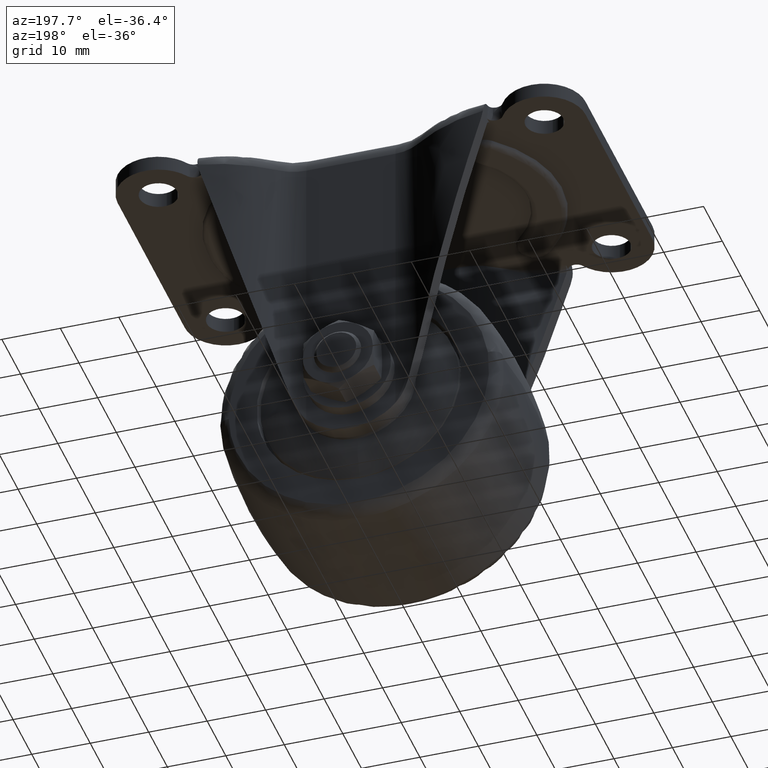
[diagram: clean part render]
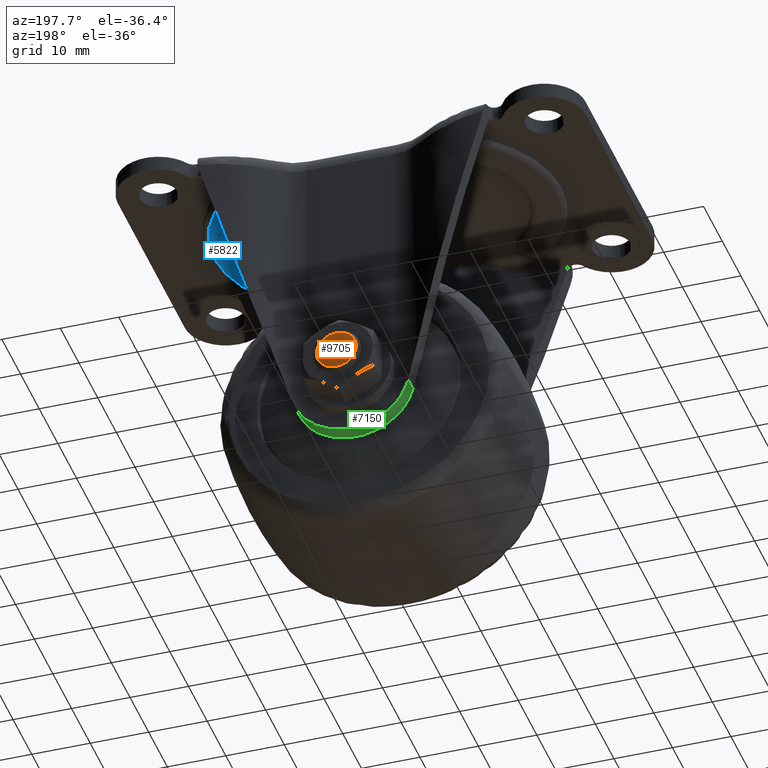
[diagram: same view with three faces highlighted in distinct colors, each labeled with its STEP entity id]
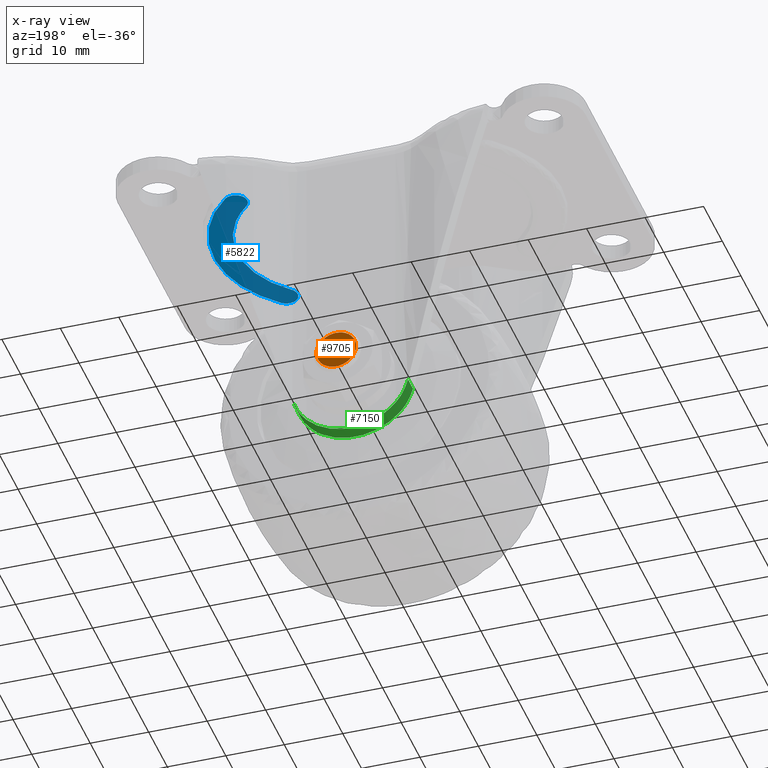
[diagram: x-ray of the same camera — body ghosted, the three highlighted faces saturated]
A machine part, auxiliary view with three faces highlighted in distinct colors.
The next image is the same camera in x-ray (body ghosted, the three faces saturated) — at least one of them is partly hidden behind the body in this view.
Their STEP definitions:

[orange] entity #9705 — the highlighted face is a freeform B-spline surface patch.
#8652=CARTESIAN_POINT('',(3.376232389639959,26.149999999938839,-47.401316398320091));
#8653=VERTEX_POINT('',#8652);
#8659=CARTESIAN_POINT('',(0.0,26.149999999999999,-43.600000000000193));
#8660=VERTEX_POINT('',#8659);
#8661=CARTESIAN_POINT('',(3.376232389639960,26.149999999938835,-47.401316398320091));
#8662=CARTESIAN_POINT('',(3.399999999999804,26.149999999999999,-47.201362007301469));
#8663=CARTESIAN_POINT('',(3.399999999999805,26.149999999999999,-47.0));
#8664=CARTESIAN_POINT('',(3.399999999999805,26.150000000000002,-43.600000000000200));
#8665=CARTESIAN_POINT('',(0.0,26.149999999999999,-43.600000000000193));
#8673=(BOUNDED_CURVE()B_SPLINE_CURVE(2,(#8661,#8662,#8663,#8664,#8665),.UNSPECIFIED.,.F.,.U.)B_SPLINE_CURVE_WITH_KNOTS((3,2,3),(0.229562473467599,0.250000000000000,0.500000000000000),.UNSPECIFIED.)CURVE()GEOMETRIC_REPRESENTATION_ITEM()RATIONAL_B_SPLINE_CURVE((0.956026754093714,0.976055948277358,1.0,0.707106781186547,1.0))REPRESENTATION_ITEM(''));
#8674=EDGE_CURVE('',#8653,#8660,#8673,.T.);
#8676=CARTESIAN_POINT('',(-3.393658314672810,26.149999999927690,-46.792434965029052));
#8677=VERTEX_POINT('',#8676);
#8678=CARTESIAN_POINT('',(0.0,26.149999999999999,-43.600000000000193));
#8679=CARTESIAN_POINT('',(-3.198400626444214,26.149999999999999,-43.600000000000193));
#8680=CARTESIAN_POINT('',(-3.393658314672811,26.149999999927690,-46.792434965029045));
#8688=(BOUNDED_CURVE()B_SPLINE_CURVE(2,(#8678,#8679,#8680),.UNSPECIFIED.,.F.,.U.)B_SPLINE_CURVE_WITH_KNOTS((3,3),(0.500000000000000,0.739332962186238),.UNSPECIFIED.)CURVE()GEOMETRIC_REPRESENTATION_ITEM()RATIONAL_B_SPLINE_CURVE((1.0,0.719603993348457,0.976072041553762))REPRESENTATION_ITEM(''));
#8689=EDGE_CURVE('',#8660,#8677,#8688,.T.);
#8722=CARTESIAN_POINT('',(0.0,26.149999999999999,-50.399999999999807));
#8723=VERTEX_POINT('',#8722);
#8724=CARTESIAN_POINT('',(-3.393658314672811,26.149999999927687,-46.792434965029045));
#8725=CARTESIAN_POINT('',(-3.399999999999805,26.149999999999995,-46.896120604235222));
#8726=CARTESIAN_POINT('',(-3.399999999999805,26.149999999999999,-47.0));
#8727=CARTESIAN_POINT('',(-3.399999999999805,26.150000000000002,-50.399999999999793));
#8728=CARTESIAN_POINT('',(0.0,26.149999999999999,-50.399999999999807));
#8736=(BOUNDED_CURVE()B_SPLINE_CURVE(2,(#8724,#8725,#8726,#8727,#8728),.UNSPECIFIED.,.F.,.U.)B_SPLINE_CURVE_WITH_KNOTS((3,2,3),(0.739332962186239,0.750000000000000,1.0),.UNSPECIFIED.)CURVE()GEOMETRIC_REPRESENTATION_ITEM()RATIONAL_B_SPLINE_CURVE((0.976072041553763,0.987502787838091,1.0,0.707106781186547,1.0))REPRESENTATION_ITEM(''));
#8737=EDGE_CURVE('',#8677,#8723,#8736,.T.);
#8739=CARTESIAN_POINT('',(0.0,26.149999999999999,-50.399999999999807));
#8740=CARTESIAN_POINT('',(3.019793387369937,26.150000000000002,-50.399999999999800));
#8741=CARTESIAN_POINT('',(3.376232389639960,26.149999999938842,-47.401316398320098));
#8749=(BOUNDED_CURVE()B_SPLINE_CURVE(2,(#8739,#8740,#8741),.UNSPECIFIED.,.F.,.U.)B_SPLINE_CURVE_WITH_KNOTS((3,3),(0.0,0.229562473467598),.UNSPECIFIED.)CURVE()GEOMETRIC_REPRESENTATION_ITEM()RATIONAL_B_SPLINE_CURVE((1.0,0.731050832909189,0.956026754093714))REPRESENTATION_ITEM(''));
#8750=EDGE_CURVE('',#8723,#8653,#8749,.T.);
#9694=CARTESIAN_POINT('',(-3.739577233841927,26.149999999999999,-43.260338344458432));
#9695=CARTESIAN_POINT('',(-3.739577233841927,26.149999999999999,-50.739661777135041));
#9696=CARTESIAN_POINT('',(3.739598147919685,26.149999999999999,-43.260338344458432));
#9697=CARTESIAN_POINT('',(3.739598147919685,26.149999999999999,-50.739661777135041));
#9698=B_SPLINE_SURFACE_WITH_KNOTS('',1,1,((#9694,#9696),(#9695,#9697)),.UNSPECIFIED.,.F.,.F.,.U.,(2,2),(2,2),(0.0,7.479323432676609),(0.0,7.479175381761611),.UNSPECIFIED.);
#9699=ORIENTED_EDGE('',*,*,#8737,.F.);
#9700=ORIENTED_EDGE('',*,*,#8689,.F.);
#9701=ORIENTED_EDGE('',*,*,#8674,.F.);
#9702=ORIENTED_EDGE('',*,*,#8750,.F.);
#9703=EDGE_LOOP('',(#9699,#9700,#9701,#9702));
#9704=FACE_OUTER_BOUND('',#9703,.T.);
#9705=ADVANCED_FACE('',(#9704),#9698,.F.);

[blue] entity #5822 — the highlighted face is a freeform B-spline surface patch.
#5534=CARTESIAN_POINT('',(19.909793814433002,12.015463917525780,-3.600000000000000));
#5535=VERTEX_POINT('',#5534);
#5549=CARTESIAN_POINT('',(19.909793814433002,-12.015463917525780,-3.600000000000000));
#5550=VERTEX_POINT('',#5549);
#5551=CARTESIAN_POINT('',(19.909793814432991,-12.015463917525770,-3.600000000000000));
#5552=CARTESIAN_POINT('',(25.249999999999996,-7.194444444444446,-3.600000000000000));
#5553=CARTESIAN_POINT('',(25.250000000000000,0.0,-3.600000000000000));
#5554=CARTESIAN_POINT('',(25.249999999999996,7.194444444444441,-3.600000000000000));
#5555=CARTESIAN_POINT('',(19.909793814432991,12.015463917525770,-3.600000000000000));
#5563=(BOUNDED_CURVE()B_SPLINE_CURVE(2,(#5551,#5552,#5553,#5554,#5555),.UNSPECIFIED.,.F.,.U.)B_SPLINE_CURVE_WITH_KNOTS((3,2,3),(0.0,0.500000000000000,1.0),.UNSPECIFIED.)CURVE()GEOMETRIC_REPRESENTATION_ITEM()RATIONAL_B_SPLINE_CURVE((1.0,0.913811548620257,1.0,0.913811548620257,1.0))REPRESENTATION_ITEM(''));
#5564=EDGE_CURVE('',#5550,#5535,#5563,.T.);
#5622=CARTESIAN_POINT('',(22.590206184249649,-14.984536083663500,-3.600000000000000));
#5623=VERTEX_POINT('',#5622);
#5655=CARTESIAN_POINT('',(22.590206184249659,-14.984536083663510,-3.600000000000000));
#5656=CARTESIAN_POINT('',(21.105670101244826,-16.324742267318527,-3.600000000000001));
#5657=CARTESIAN_POINT('',(19.765463916931139,-14.840206184908331,-3.600000000000000));
#5658=CARTESIAN_POINT('',(18.425257732617446,-13.355670102498143,-3.600000000000001));
#5659=CARTESIAN_POINT('',(19.909793814432991,-12.015463917525770,-3.600000000000000));
#5667=(BOUNDED_CURVE()B_SPLINE_CURVE(2,(#5655,#5656,#5657,#5658,#5659),.UNSPECIFIED.,.F.,.U.)B_SPLINE_CURVE_WITH_KNOTS((3,2,3),(0.0,0.500000000000000,1.0),.UNSPECIFIED.)CURVE()GEOMETRIC_REPRESENTATION_ITEM()RATIONAL_B_SPLINE_CURVE((1.0,0.707106781343417,1.0,0.707106781343417,1.0))REPRESENTATION_ITEM(''));
#5668=EDGE_CURVE('',#5623,#5550,#5667,.T.);
#5698=CARTESIAN_POINT('',(22.590206172269951,14.984536094478520,-3.600000000000000));
#5699=VERTEX_POINT('',#5698);
#5713=CARTESIAN_POINT('',(19.909793814432991,12.015463917525770,-3.600000000000000));
#5714=CARTESIAN_POINT('',(18.425257738607300,13.355670097090634,-3.600000000000000));
#5715=CARTESIAN_POINT('',(19.765463911523629,14.840206178918480,-3.600000000000000));
#5716=CARTESIAN_POINT('',(21.105670084439957,16.324742260746323,-3.600000000000000));
#5717=CARTESIAN_POINT('',(22.590206172269951,14.984536094478520,-3.600000000000000));
#5725=(BOUNDED_CURVE()B_SPLINE_CURVE(2,(#5713,#5714,#5715,#5716,#5717),.UNSPECIFIED.,.F.,.U.)B_SPLINE_CURVE_WITH_KNOTS((3,2,3),(0.0,0.500000000000000,1.0),.UNSPECIFIED.)CURVE()GEOMETRIC_REPRESENTATION_ITEM()RATIONAL_B_SPLINE_CURVE((1.0,0.707106782769945,1.0,0.707106782769945,1.0))REPRESENTATION_ITEM(''));
#5726=EDGE_CURVE('',#5535,#5699,#5725,.T.);
#5765=CARTESIAN_POINT('',(22.590206172269951,14.984536094478520,-3.600000000000000));
#5766=CARTESIAN_POINT('',(29.249999996413482,8.972222236186392,-3.599999999999999));
#5767=CARTESIAN_POINT('',(29.250000000000000,8.069660E-009,-3.600000000000000));
#5768=CARTESIAN_POINT('',(29.250000003586521,-8.972222220047065,-3.599999999999999));
#5769=CARTESIAN_POINT('',(22.590206184249659,-14.984536083663510,-3.600000000000000));
#5777=(BOUNDED_CURVE()B_SPLINE_CURVE(2,(#5765,#5766,#5767,#5768,#5769),.UNSPECIFIED.,.F.,.U.)B_SPLINE_CURVE_WITH_KNOTS((3,2,3),(0.0,0.500000000000000,1.0),.UNSPECIFIED.)CURVE()GEOMETRIC_REPRESENTATION_ITEM()RATIONAL_B_SPLINE_CURVE((1.0,0.913811548521230,1.0,0.913811548521230,1.0))REPRESENTATION_ITEM(''));
#5778=EDGE_CURVE('',#5699,#5623,#5777,.T.);
#5811=CARTESIAN_POINT('',(18.750502007301609,17.048447987612821,-3.600000000000000));
#5812=CARTESIAN_POINT('',(29.749500154201201,17.048447987612821,-3.600000000000000));
#5813=CARTESIAN_POINT('',(18.750502007301609,-17.048447483793950,-3.600000000000000));
#5814=CARTESIAN_POINT('',(29.749500154201201,-17.048447483793950,-3.600000000000000));
#5815=B_SPLINE_SURFACE_WITH_KNOTS('',1,1,((#5811,#5813),(#5812,#5814)),.UNSPECIFIED.,.F.,.F.,.U.,(2,2),(2,2),(0.0,10.998998146899600),(0.0,34.096895471406768),.UNSPECIFIED.);
#5816=ORIENTED_EDGE('',*,*,#5668,.T.);
#5817=ORIENTED_EDGE('',*,*,#5564,.T.);
#5818=ORIENTED_EDGE('',*,*,#5726,.T.);
#5819=ORIENTED_EDGE('',*,*,#5778,.T.);
#5820=EDGE_LOOP('',(#5816,#5817,#5818,#5819));
#5821=FACE_OUTER_BOUND('',#5820,.T.);
#5822=ADVANCED_FACE('',(#5821),#5815,.T.);

[green] entity #7150 — the highlighted face is a freeform B-spline surface patch.
#6916=CARTESIAN_POINT('',(-9.891750061092068,18.733002500929999,-50.045615801581199));
#6917=VERTEX_POINT('',#6916);
#6931=CARTESIAN_POINT('',(-9.891750061092068,16.024423790196899,-50.045615801581199));
#6932=VERTEX_POINT('',#6931);
#6933=CARTESIAN_POINT('',(-9.891750061092068,18.733002500929999,-50.045615801581199));
#6934=CARTESIAN_POINT('',(-9.891750061092068,16.024423790196899,-50.045615801581199));
#6935=QUASI_UNIFORM_CURVE('',1,(#6933,#6934),.UNSPECIFIED.,.F.,.U.);
#6936=EDGE_CURVE('',#6917,#6932,#6935,.T.);
#6990=CARTESIAN_POINT('',(9.891750061092079,16.024423790196899,-50.045615801581199));
#6991=VERTEX_POINT('',#6990);
#7005=CARTESIAN_POINT('',(9.891750061092079,18.733002500929999,-50.045615801581199));
#7006=VERTEX_POINT('',#7005);
#7007=CARTESIAN_POINT('',(9.891750061092079,18.733002500929999,-50.045615801581199));
#7008=CARTESIAN_POINT('',(9.891750061092079,16.024423790196899,-50.045615801581199));
#7009=QUASI_UNIFORM_CURVE('',1,(#7007,#7008),.UNSPECIFIED.,.F.,.U.);
#7010=EDGE_CURVE('',#7006,#6991,#7009,.T.);
#7028=CARTESIAN_POINT('',(9.999607107959239,18.807577563453250,-49.670272120806871));
#7029=CARTESIAN_POINT('',(9.999607107959239,15.673560560913669,-49.670272120806871));
#7030=CARTESIAN_POINT('',(7.932060875604503,18.807577563453250,-57.412795189703758));
#7031=CARTESIAN_POINT('',(7.932060875604503,15.673560560913666,-57.412795189703758));
#7032=CARTESIAN_POINT('',(-0.081516798160809,18.807577563453250,-57.349678140858877));
#7033=CARTESIAN_POINT('',(-0.081516798160809,15.673560560913669,-57.349678140858877));
#7034=CARTESIAN_POINT('',(-8.095094471926123,18.807577563453250,-57.286561092013997));
#7035=CARTESIAN_POINT('',(-8.095094471926123,15.673560560913666,-57.286561092013997));
#7036=CARTESIAN_POINT('',(-10.040427460467249,18.807577563453250,-49.512431529225751));
#7037=CARTESIAN_POINT('',(-10.040427460467249,15.673560560913669,-49.512431529225751));
#7045=(BOUNDED_SURFACE()B_SPLINE_SURFACE(1,2,((#7028,#7030,#7032,#7034,#7036),(#7029,#7031,#7033,#7035,#7037)),.UNSPECIFIED.,.F.,.F.,.U.)B_SPLINE_SURFACE_WITH_KNOTS((2,2),(3,2,3),(0.0,3.134017002539583),(0.0,14.154209509599740,28.308419019199469),.UNSPECIFIED.)GEOMETRIC_REPRESENTATION_ITEM()RATIONAL_B_SPLINE_SURFACE(((1.0,0.790689573743843,1.0,0.790689573743843,1.0),(1.0,0.790689573743843,1.0,0.790689573743843,1.0)))REPRESENTATION_ITEM('')SURFACE());
#7046=CARTESIAN_POINT('',(-7.624870356053581,15.750000000000000,-53.998845639966497));
#7047=VERTEX_POINT('',#7046);
#7048=CARTESIAN_POINT('',(-7.624870356053567,15.750000000000000,-53.998845639966490));
#7049=CARTESIAN_POINT('',(-7.884083202895186,15.750000000000000,-53.716447053659010));
#7050=CARTESIAN_POINT('',(-8.127017330377072,15.760558009200100,-53.420390657768273));
#7051=CARTESIAN_POINT('',(-8.466948134147806,15.786711975439800,-52.955679113611971));
#7052=CARTESIAN_POINT('',(-8.576170415875131,15.797158829485930,-52.797329450677587));
#7053=CARTESIAN_POINT('',(-8.786311184343939,15.820671646338621,-52.473615265771599));
#7054=CARTESIAN_POINT('',(-8.886458420693417,15.833650113802280,-52.309429462294418));
#7055=CARTESIAN_POINT('',(-9.172025614564660,15.874856848953650,-51.810739199110941));
#7056=CARTESIAN_POINT('',(-9.342843879769163,15.905349094487191,-51.469779968258422));
#7057=CARTESIAN_POINT('',(-9.646202207655943,15.966242618433700,-50.770735852604290));
#7058=CARTESIAN_POINT('',(-9.778741688373495,15.996655726632181,-50.412651679438063));
#7059=CARTESIAN_POINT('',(-9.891750061092084,16.024423790196920,-50.045615801581206));
#7060=B_SPLINE_CURVE_WITH_KNOTS('',3,(#7048,#7049,#7050,#7051,#7052,#7053,#7054,#7055,#7056,#7057,#7058,#7059),.UNSPECIFIED.,.F.,.U.,(4,2,2,2,2,4),(0.0,0.249999999999999,0.375000000000000,0.500000000000002,0.750000000000001,1.0),.UNSPECIFIED.);
#7061=EDGE_CURVE('',#7047,#6932,#7060,.T.);
#7062=ORIENTED_EDGE('',*,*,#7061,.T.);
#7063=ORIENTED_EDGE('',*,*,#6936,.F.);
#7064=CARTESIAN_POINT('',(-7.624870356053560,18.350000000000001,-53.998845639966497));
#7065=VERTEX_POINT('',#7064);
#7066=CARTESIAN_POINT('',(-7.624870356053560,18.350000000000001,-53.998845639966490));
#7067=CARTESIAN_POINT('',(-7.884952223931431,18.350000000000001,-53.715500301539663));
#7068=CARTESIAN_POINT('',(-8.127698285583774,18.364599738757061,-53.419447735533730));
#7069=CARTESIAN_POINT('',(-8.579351055199791,18.412563398524469,-52.802027676590683));
#7070=CARTESIAN_POINT('',(-8.788256910618918,18.445975511365589,-52.480662048506268));
#7071=CARTESIAN_POINT('',(-9.027864482469656,18.493965950642920,-52.062553057047502));
#7072=CARTESIAN_POINT('',(-9.074639548489385,18.503865077478618,-51.978217331736737));
#7073=CARTESIAN_POINT('',(-9.165531603208990,18.524040586971100,-51.808821212340163));
#7074=CARTESIAN_POINT('',(-9.209707655899209,18.534328651953441,-51.723658700045704));
#7075=CARTESIAN_POINT('',(-9.338475428785472,18.565588182754620,-51.466773712427582));
#7076=CARTESIAN_POINT('',(-9.419310466171412,18.586952343741981,-51.293654909431311));
#7077=CARTESIAN_POINT('',(-9.647041903583135,18.651083441516860,-50.768638162042102));
#7078=CARTESIAN_POINT('',(-9.779220093414793,18.693859951009951,-50.411097884705143));
#7079=CARTESIAN_POINT('',(-9.891750061092088,18.733002500930020,-50.045615801581206));
#7080=B_SPLINE_CURVE_WITH_KNOTS('',3,(#7066,#7067,#7068,#7069,#7070,#7071,#7072,#7073,#7074,#7075,#7076,#7077,#7078,#7079),.UNSPECIFIED.,.F.,.U.,(4,2,2,2,2,2,4),(0.0,0.249999999999996,0.499999999999993,0.562499999999994,0.624999999999995,0.749999999999997,1.0),.UNSPECIFIED.);
#7081=EDGE_CURVE('',#7065,#6917,#7080,.T.);
#7082=ORIENTED_EDGE('',*,*,#7081,.F.);
#7083=CARTESIAN_POINT('',(7.624870356053560,18.350000000000001,-53.998845639966497));
#7084=VERTEX_POINT('',#7083);
#7085=CARTESIAN_POINT('',(7.624870356053558,18.350000000000001,-53.998845639966497));
#7086=CARTESIAN_POINT('',(4.548856217918130,18.350000000000005,-57.349999159768799));
#7087=CARTESIAN_POINT('',(2.146554E-015,18.350000000000001,-57.349999159768799));
#7088=CARTESIAN_POINT('',(-4.548856217918128,18.350000000000005,-57.349999159768799));
#7089=CARTESIAN_POINT('',(-7.624870356053556,18.350000000000001,-53.998845639966497));
#7097=(BOUNDED_CURVE()B_SPLINE_CURVE(2,(#7085,#7086,#7087,#7088,#7089),.UNSPECIFIED.,.F.,.U.)B_SPLINE_CURVE_WITH_KNOTS((3,2,3),(0.0,0.500000000000000,1.0),.UNSPECIFIED.)CURVE()GEOMETRIC_REPRESENTATION_ITEM()RATIONAL_B_SPLINE_CURVE((1.0,0.915482673573572,1.0,0.915482673573572,1.0))REPRESENTATION_ITEM(''));
#7098=EDGE_CURVE('',#7084,#7065,#7097,.T.);
#7099=ORIENTED_EDGE('',*,*,#7098,.F.);
#7100=CARTESIAN_POINT('',(9.891750061092091,18.733002500930020,-50.045615801581206));
#7101=CARTESIAN_POINT('',(9.779550212522761,18.693974780009992,-50.410025702585642));
#7102=CARTESIAN_POINT('',(9.647115861922240,18.651066689989079,-50.768821802656397));
#7103=CARTESIAN_POINT('',(9.340296010928737,18.564739157028072,-51.475458800422778));
#7104=CARTESIAN_POINT('',(9.168467021230438,18.522097697285840,-51.817354533146570));
#7105=CARTESIAN_POINT('',(8.789408745612679,18.446235571475551,-52.478502077113021));
#7106=CARTESIAN_POINT('',(8.582095812195856,18.412960045533659,-52.797940223141246));
#7107=CARTESIAN_POINT('',(8.243953754124657,18.376894099139260,-53.260687921867309));
#7108=CARTESIAN_POINT('',(8.126698704202509,18.367189730842451,-53.412195146989042));
#7109=CARTESIAN_POINT('',(7.882865195859411,18.353743946541709,-53.709688087827857));
#7110=CARTESIAN_POINT('',(7.756203235081303,18.350000000000009,-53.855765465410997));
#7111=CARTESIAN_POINT('',(7.624870356053555,18.350000000000001,-53.998845639966497));
#7112=B_SPLINE_CURVE_WITH_KNOTS('',3,(#7100,#7101,#7102,#7103,#7104,#7105,#7106,#7107,#7108,#7109,#7110,#7111),.UNSPECIFIED.,.F.,.U.,(4,2,2,2,2,4),(0.0,0.250000000000001,0.500000000000002,0.750000000000003,0.875000000000002,1.0),.UNSPECIFIED.);
#7113=EDGE_CURVE('',#7006,#7084,#7112,.T.);
#7114=ORIENTED_EDGE('',*,*,#7113,.F.);
#7115=ORIENTED_EDGE('',*,*,#7010,.T.);
#7116=CARTESIAN_POINT('',(7.624870356053560,15.750000000000000,-53.998845639966497));
#7117=VERTEX_POINT('',#7116);
#7118=CARTESIAN_POINT('',(9.891750061092088,16.024423790196920,-50.045615801581206));
#7119=CARTESIAN_POINT('',(9.779518268150989,15.996846545383971,-50.410129453575479));
#7120=CARTESIAN_POINT('',(9.646960835214829,15.966374582130740,-50.769266020535682));
#7121=CARTESIAN_POINT('',(9.416521083612061,15.920148695089249,-51.299861039858747));
#7122=CARTESIAN_POINT('',(9.334970066718652,15.904778190191230,-51.474093099375850));
#7123=CARTESIAN_POINT('',(9.163048919169368,15.874947018660990,-51.816400018487982));
#7124=CARTESIAN_POINT('',(9.072604061288082,15.860470958548021,-51.984646992193071));
#7125=CARTESIAN_POINT('',(8.787964851025583,15.819519354670510,-52.480839208694739));
#7126=CARTESIAN_POINT('',(8.580510885285198,15.795487147943341,-52.800263092499257));
#7127=CARTESIAN_POINT('',(8.129909939646527,15.760743068616019,-53.416602086167480));
#7128=CARTESIAN_POINT('',(7.886770066146243,15.750000000000000,-53.713519859297513));
#7129=CARTESIAN_POINT('',(7.624870356053553,15.750000000000000,-53.998845639966497));
#7130=B_SPLINE_CURVE_WITH_KNOTS('',3,(#7118,#7119,#7120,#7121,#7122,#7123,#7124,#7125,#7126,#7127,#7128,#7129),.UNSPECIFIED.,.F.,.U.,(4,2,2,2,2,4),(0.0,0.250000000000003,0.375000000000003,0.500000000000002,0.750000000000001,1.0),.UNSPECIFIED.);
#7131=EDGE_CURVE('',#6991,#7117,#7130,.T.);
#7132=ORIENTED_EDGE('',*,*,#7131,.T.);
#7133=CARTESIAN_POINT('',(-7.624870356053568,15.750000000000000,-53.998845639966490));
#7134=CARTESIAN_POINT('',(-4.548856217918137,15.749999999999998,-57.349999159768807));
#7135=CARTESIAN_POINT('',(2.146554E-015,15.750000000000000,-57.349999159768799));
#7136=CARTESIAN_POINT('',(4.548856217918127,15.749999999999998,-57.349999159768807));
#7137=CARTESIAN_POINT('',(7.624870356053556,15.750000000000000,-53.998845639966497));
#7145=(BOUNDED_CURVE()B_SPLINE_CURVE(2,(#7133,#7134,#7135,#7136,#7137),.UNSPECIFIED.,.F.,.U.)B_SPLINE_CURVE_WITH_KNOTS((3,2,3),(0.0,0.500000000000000,1.0),.UNSPECIFIED.)CURVE()GEOMETRIC_REPRESENTATION_ITEM()RATIONAL_B_SPLINE_CURVE((1.0,0.915482673573571,1.0,0.915482673573571,1.0))REPRESENTATION_ITEM(''));
#7146=EDGE_CURVE('',#7047,#7117,#7145,.T.);
#7147=ORIENTED_EDGE('',*,*,#7146,.F.);
#7148=EDGE_LOOP('',(#7062,#7063,#7082,#7099,#7114,#7115,#7132,#7147));
#7149=FACE_OUTER_BOUND('',#7148,.T.);
#7150=ADVANCED_FACE('',(#7149),#7045,.T.);